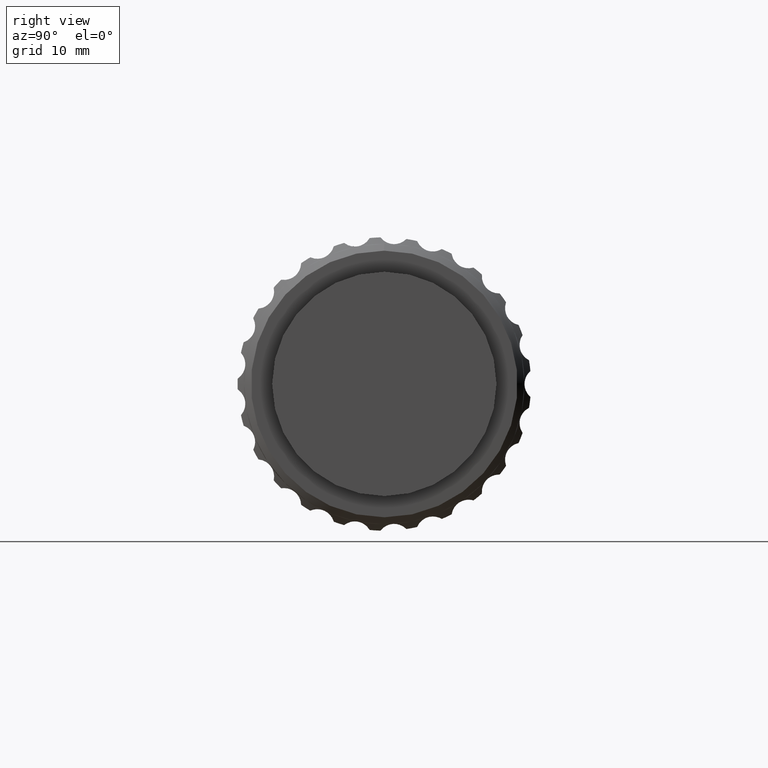
[diagram: clean part render]
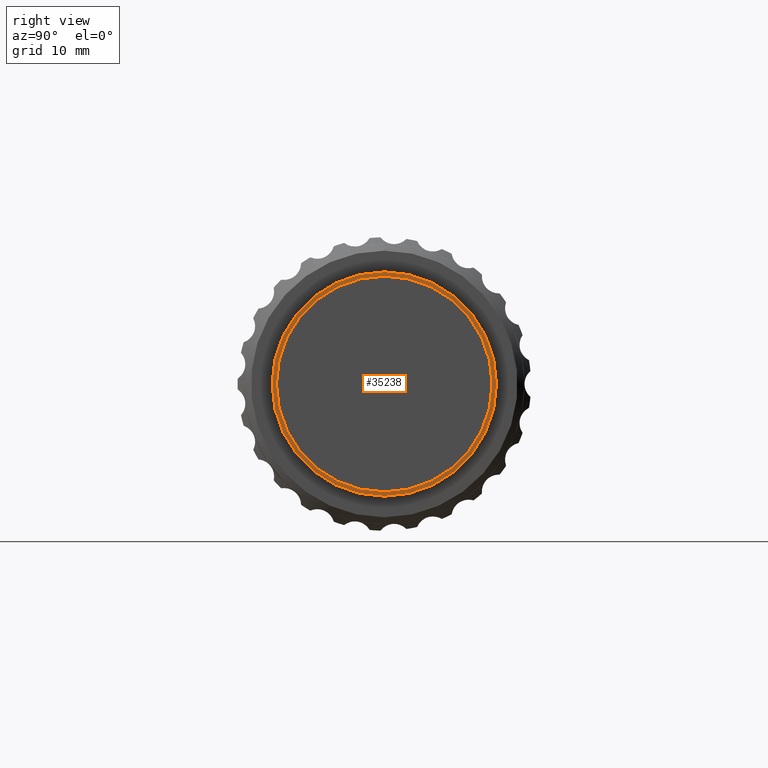
[diagram: same view with one face highlighted and labeled with its STEP entity id]
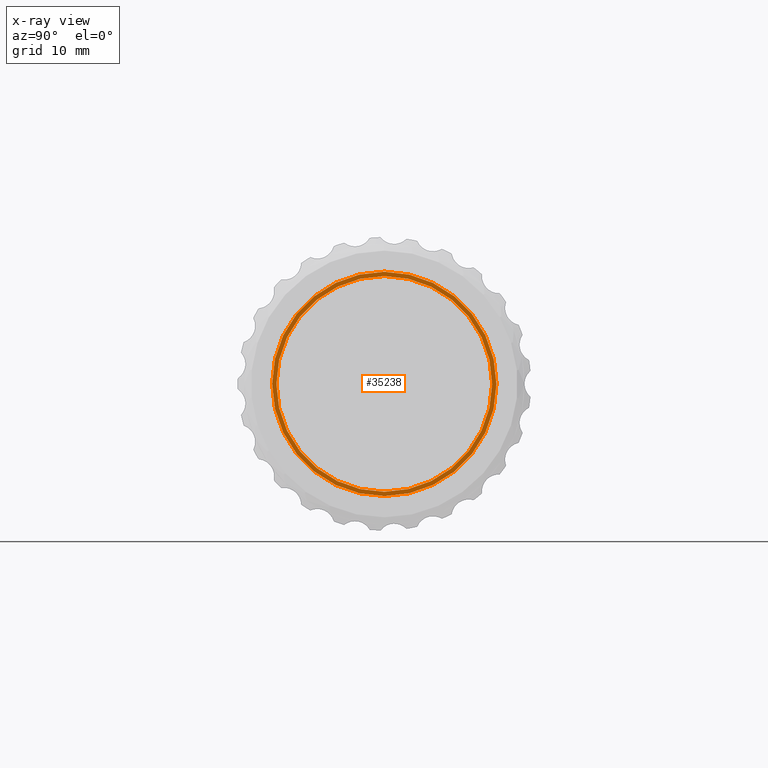
[diagram: x-ray of the same camera — body ghosted, the highlighted face saturated]
A machine part, right view. The second image highlights one B-rep face of the part: STEP entity #35238.
The next image is the same camera in x-ray: the body ghosted, the highlighted face saturated — about 0% of this face is hidden behind the body in this view.
In plain terms, the highlighted planar face has unit normal (-1, 0, -0).
Its self-contained STEP definition (entity closure, byte-faithful):
#1076 = AXIS2_PLACEMENT_3D ( 'NONE', #42748, #4444, #17740 ) ;
#1405 = FACE_BOUND ( 'NONE', #41170, .T. ) ;
#1699 = CARTESIAN_POINT ( 'NONE',  ( 68.34999999999999432, 1.592040838891559095E-15, -13.00000000000000000 ) ) ;
#2063 = ORIENTED_EDGE ( 'NONE', *, *, #26682, .F. ) ;
#2530 = CIRCLE ( 'NONE', #47717, 13.00000000000000000 ) ;
#2538 = DIRECTION ( 'NONE',  ( -1.000000000000000000, -0.000000000000000000, -0.000000000000000000 ) ) ;
#4444 = DIRECTION ( 'NONE',  ( -1.000000000000000000, -0.000000000000000000, -0.000000000000000000 ) ) ;
#4953 = AXIS2_PLACEMENT_3D ( 'NONE', #30562, #22476, #13607 ) ;
#6346 = CARTESIAN_POINT ( 'NONE',  ( 68.34999999999999432, 1.530808498934191521E-15, -12.50000000000000000 ) ) ;
#6776 = VERTEX_POINT ( 'NONE', #6346 ) ;
#6981 = EDGE_CURVE ( 'NONE', #23680, #6776, #8225, .T. ) ;
#8225 = CIRCLE ( 'NONE', #26836, 12.50000000000000000 ) ;
#11573 = EDGE_CURVE ( 'NONE', #18791, #11996, #2530, .T. ) ;
#11996 = VERTEX_POINT ( 'NONE', #41494 ) ;
#12922 = ORIENTED_EDGE ( 'NONE', *, *, #6981, .T. ) ;
#13607 = DIRECTION ( 'NONE',  ( -0.000000000000000000, 0.000000000000000000, 1.000000000000000000 ) ) ;
#13993 = ORIENTED_EDGE ( 'NONE', *, *, #11573, .F. ) ;
#14908 = CARTESIAN_POINT ( 'NONE',  ( 68.34999999999999432, 0.000000000000000000, 12.50000000000000000 ) ) ;
#16339 = CARTESIAN_POINT ( 'NONE',  ( 68.34999999999999432, 0.000000000000000000, 0.000000000000000000 ) ) ;
#17740 = DIRECTION ( 'NONE',  ( 0.000000000000000000, 0.000000000000000000, 1.000000000000000000 ) ) ;
#18374 = EDGE_LOOP ( 'NONE', ( #2063, #13993 ) ) ;
#18791 = VERTEX_POINT ( 'NONE', #1699 ) ;
#19475 = ORIENTED_EDGE ( 'NONE', *, *, #43491, .T. ) ;
#22476 = DIRECTION ( 'NONE',  ( -1.000000000000000000, 0.000000000000000000, -0.000000000000000000 ) ) ;
#23680 = VERTEX_POINT ( 'NONE', #14908 ) ;
#25008 = CIRCLE ( 'NONE', #1076, 12.50000000000000000 ) ;
#26682 = EDGE_CURVE ( 'NONE', #11996, #18791, #50180, .T. ) ;
#26836 = AXIS2_PLACEMENT_3D ( 'NONE', #16339, #41890, #28570 ) ;
#28570 = DIRECTION ( 'NONE',  ( 0.000000000000000000, 0.000000000000000000, 1.000000000000000000 ) ) ;
#30562 = CARTESIAN_POINT ( 'NONE',  ( 68.34999999999999432, 13.00000000000000000, 0.000000000000000000 ) ) ;
#33391 = AXIS2_PLACEMENT_3D ( 'NONE', #48312, #2538, #40272 ) ;
#35238 = ADVANCED_FACE ( 'NONE', ( #39423, #1405 ), #43061, .F. ) ;
#39423 = FACE_OUTER_BOUND ( 'NONE', #18374, .T. ) ;
#39633 = CARTESIAN_POINT ( 'NONE',  ( 68.34999999999999432, 0.000000000000000000, 0.000000000000000000 ) ) ;
#40272 = DIRECTION ( 'NONE',  ( 0.000000000000000000, 0.000000000000000000, 1.000000000000000000 ) ) ;
#41170 = EDGE_LOOP ( 'NONE', ( #12922, #19475 ) ) ;
#41494 = CARTESIAN_POINT ( 'NONE',  ( 68.34999999999999432, 0.000000000000000000, 13.00000000000000000 ) ) ;
#41890 = DIRECTION ( 'NONE',  ( -1.000000000000000000, -0.000000000000000000, -0.000000000000000000 ) ) ;
#42748 = CARTESIAN_POINT ( 'NONE',  ( 68.34999999999999432, 0.000000000000000000, 0.000000000000000000 ) ) ;
#43061 = PLANE ( 'NONE',  #4953 ) ;
#43491 = EDGE_CURVE ( 'NONE', #6776, #23680, #25008, .T. ) ;
#44617 = DIRECTION ( 'NONE',  ( 0.000000000000000000, 0.000000000000000000, 1.000000000000000000 ) ) ;
#47717 = AXIS2_PLACEMENT_3D ( 'NONE', #39633, #53183, #44617 ) ;
#48312 = CARTESIAN_POINT ( 'NONE',  ( 68.34999999999999432, 0.000000000000000000, 0.000000000000000000 ) ) ;
#50180 = CIRCLE ( 'NONE', #33391, 13.00000000000000000 ) ;
#53183 = DIRECTION ( 'NONE',  ( -1.000000000000000000, -0.000000000000000000, -0.000000000000000000 ) ) ;